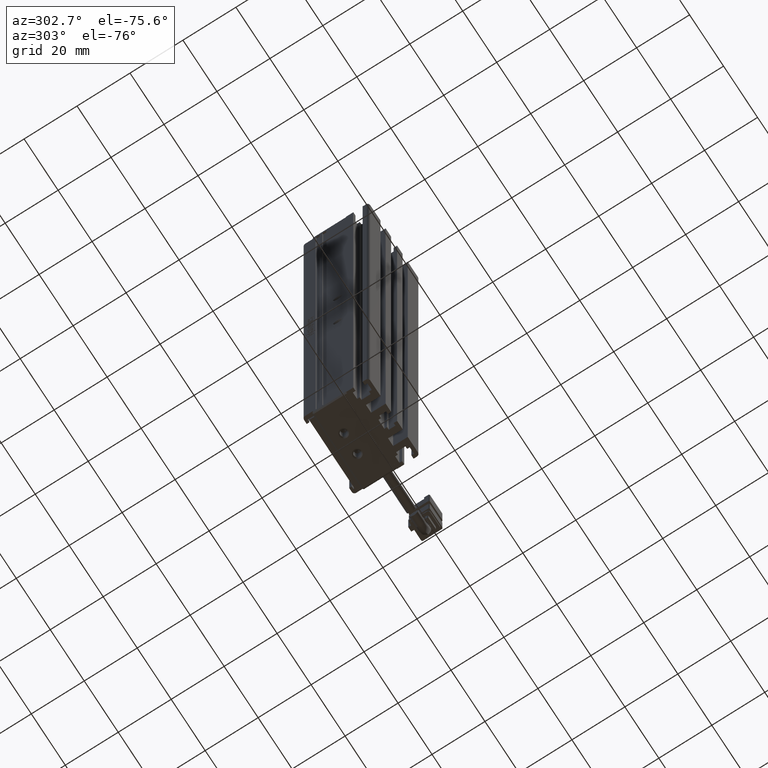
[diagram: clean part render]
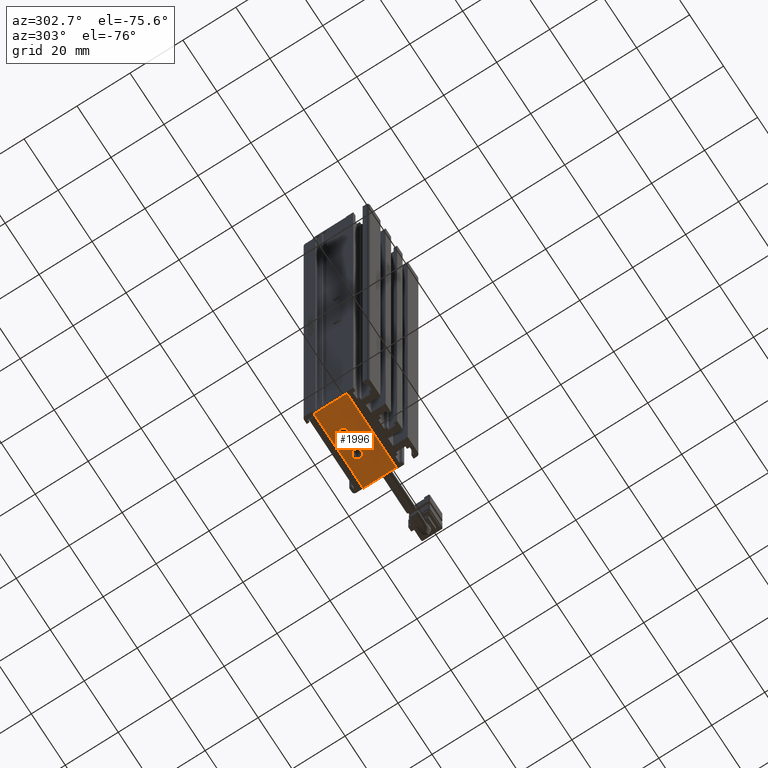
[diagram: same view with one face highlighted and labeled with its STEP entity id]
A machine part, auxiliary view. The second image highlights one B-rep face of the part: STEP entity #1996.
In plain terms, the highlighted planar face has unit normal (0, 0, -1).
Its self-contained STEP definition (entity closure, byte-faithful):
#51 = EDGE_CURVE ( 'NONE', #28193, #34334, #21846, .T. ) ;
#1038 = VERTEX_POINT ( 'NONE', #23038 ) ;
#1851 = DIRECTION ( 'NONE',  ( -1.000000000000000000, 0.0000000000000000000, 0.0000000000000000000 ) ) ;
#1996 = ADVANCED_FACE ( 'NONE', ( #16124, #45235, #5924 ), #14338, .T. ) ;
#2005 = DIRECTION ( 'NONE',  ( -0.0000000000000000000, -0.0000000000000000000, 1.000000000000000000 ) ) ;
#2336 = CARTESIAN_POINT ( 'NONE',  ( 36.92537974683541800, 27.19594479660386500, -226.9999999999809000 ) ) ;
#2343 = EDGE_CURVE ( 'NONE', #24274, #1038, #38625, .T. ) ;
#2516 = EDGE_LOOP ( 'NONE', ( #8730, #24252 ) ) ;
#2826 = VECTOR ( 'NONE', #4586, 1000.000000000000000 ) ;
#2914 = ORIENTED_EDGE ( 'NONE', *, *, #27933, .T. ) ;
#4586 = DIRECTION ( 'NONE',  ( 1.000000000000000000, -0.0000000000000000000, 0.0000000000000000000 ) ) ;
#4651 = CARTESIAN_POINT ( 'NONE',  ( 40.92537974683542500, 31.69594479660386500, -227.0000000000000000 ) ) ;
#5924 = FACE_BOUND ( 'NONE', #2516, .T. ) ;
#7203 = ORIENTED_EDGE ( 'NONE', *, *, #7353, .T. ) ;
#7353 = EDGE_CURVE ( 'NONE', #34334, #28193, #16369, .T. ) ;
#7422 = LINE ( 'NONE', #32911, #18813 ) ;
#8666 = AXIS2_PLACEMENT_3D ( 'NONE', #16745, #16965, #17220 ) ;
#8730 = ORIENTED_EDGE ( 'NONE', *, *, #2343, .T. ) ;
#9499 = CARTESIAN_POINT ( 'NONE',  ( 35.22537974680740500, 27.19594479660386500, -226.9999999999809000 ) ) ;
#10084 = DIRECTION ( 'NONE',  ( 0.0000000000000000000, 1.000000000000000000, 0.0000000000000000000 ) ) ;
#10431 = EDGE_CURVE ( 'NONE', #44353, #15553, #32094, .T. ) ;
#10494 = DIRECTION ( 'NONE',  ( -0.0000000000000000000, -0.0000000000000000000, 1.000000000000000000 ) ) ;
#10894 = DIRECTION ( 'NONE',  ( -0.0000000000000000000, -1.000000000000000000, -0.0000000000000000000 ) ) ;
#11135 = VECTOR ( 'NONE', #38174, 1000.000000000000000 ) ;
#11657 = CARTESIAN_POINT ( 'NONE',  ( 43.22537974682651200, 27.19594479660386500, -227.0000000000000000 ) ) ;
#11733 = LINE ( 'NONE', #29916, #21914 ) ;
#14338 = PLANE ( 'NONE',  #8666 ) ;
#15553 = VERTEX_POINT ( 'NONE', #17431 ) ;
#15591 = EDGE_CURVE ( 'NONE', #29122, #44353, #7422, .T. ) ;
#16124 = FACE_OUTER_BOUND ( 'NONE', #17463, .T. ) ;
#16369 = CIRCLE ( 'NONE', #34692, 1.700000000028012400 ) ;
#16745 = CARTESIAN_POINT ( 'NONE',  ( 40.92537974683542500, 25.69594479660386500, -227.0000000000000000 ) ) ;
#16965 = DIRECTION ( 'NONE',  ( 0.0000000000000000000, 0.0000000000000000000, -1.000000000000000000 ) ) ;
#17001 = AXIS2_PLACEMENT_3D ( 'NONE', #24763, #24885, #24918 ) ;
#17220 = DIRECTION ( 'NONE',  ( -1.000000000000000000, 0.0000000000000000000, -0.0000000000000000000 ) ) ;
#17431 = CARTESIAN_POINT ( 'NONE',  ( 55.42537974683542500, 31.69594479660386800, -227.0000000000000000 ) ) ;
#17463 = EDGE_LOOP ( 'NONE', ( #21078, #2914, #31780, #49312 ) ) ;
#17468 = CIRCLE ( 'NONE', #32133, 1.700000000008916600 ) ;
#18813 = VECTOR ( 'NONE', #10084, 1000.000000000000000 ) ;
#21078 = ORIENTED_EDGE ( 'NONE', *, *, #34618, .T. ) ;
#21846 = CIRCLE ( 'NONE', #45825, 1.700000000028012400 ) ;
#21914 = VECTOR ( 'NONE', #10894, 1000.000000000000000 ) ;
#23038 = CARTESIAN_POINT ( 'NONE',  ( 46.62537974684434500, 27.19594479660386500, -227.0000000000000000 ) ) ;
#24252 = ORIENTED_EDGE ( 'NONE', *, *, #32316, .T. ) ;
#24274 = VERTEX_POINT ( 'NONE', #11657 ) ;
#24763 = CARTESIAN_POINT ( 'NONE',  ( 44.92537974683542500, 27.19594479660386500, -227.0000000000000000 ) ) ;
#24885 = DIRECTION ( 'NONE',  ( -0.0000000000000000000, -0.0000000000000000000, 1.000000000000000000 ) ) ;
#24918 = DIRECTION ( 'NONE',  ( -1.000000000000000000, 0.0000000000000000000, 0.0000000000000000000 ) ) ;
#25442 = DIRECTION ( 'NONE',  ( -1.000000000000000000, 0.0000000000000000000, 0.0000000000000000000 ) ) ;
#25594 = DIRECTION ( 'NONE',  ( -0.0000000000000000000, -0.0000000000000000000, 1.000000000000000000 ) ) ;
#25773 = CARTESIAN_POINT ( 'NONE',  ( 36.92537974683541800, 27.19594479660386500, -226.9999999999809000 ) ) ;
#26744 = CARTESIAN_POINT ( 'NONE',  ( 40.92537974683542500, 19.19594479660386500, -227.0000000000000000 ) ) ;
#27933 = EDGE_CURVE ( 'NONE', #45157, #29122, #32583, .T. ) ;
#28193 = VERTEX_POINT ( 'NONE', #9499 ) ;
#29122 = VERTEX_POINT ( 'NONE', #30280 ) ;
#29916 = CARTESIAN_POINT ( 'NONE',  ( 55.42537974683541800, 25.69594479660386500, -227.0000000000000000 ) ) ;
#30280 = CARTESIAN_POINT ( 'NONE',  ( 26.42537974683542500, 19.19594479660386500, -227.0000000000000000 ) ) ;
#31780 = ORIENTED_EDGE ( 'NONE', *, *, #15591, .T. ) ;
#32094 = LINE ( 'NONE', #4651, #2826 ) ;
#32133 = AXIS2_PLACEMENT_3D ( 'NONE', #33297, #10494, #37136 ) ;
#32316 = EDGE_CURVE ( 'NONE', #1038, #24274, #17468, .T. ) ;
#32583 = LINE ( 'NONE', #26744, #11135 ) ;
#32911 = CARTESIAN_POINT ( 'NONE',  ( 26.42537974683542500, 25.69594479660386500, -227.0000000000000000 ) ) ;
#33297 = CARTESIAN_POINT ( 'NONE',  ( 44.92537974683542500, 27.19594479660386500, -227.0000000000000000 ) ) ;
#34334 = VERTEX_POINT ( 'NONE', #43209 ) ;
#34618 = EDGE_CURVE ( 'NONE', #15553, #45157, #11733, .T. ) ;
#34692 = AXIS2_PLACEMENT_3D ( 'NONE', #2336, #2005, #1851 ) ;
#35802 = CARTESIAN_POINT ( 'NONE',  ( 55.42537974683541100, 19.19594479660386500, -227.0000000000000000 ) ) ;
#36280 = ORIENTED_EDGE ( 'NONE', *, *, #51, .T. ) ;
#37136 = DIRECTION ( 'NONE',  ( -1.000000000000000000, 0.0000000000000000000, 0.0000000000000000000 ) ) ;
#38174 = DIRECTION ( 'NONE',  ( -1.000000000000000000, 0.0000000000000000000, -0.0000000000000000000 ) ) ;
#38197 = CARTESIAN_POINT ( 'NONE',  ( 26.42537974683542500, 31.69594479660386800, -227.0000000000000000 ) ) ;
#38275 = EDGE_LOOP ( 'NONE', ( #36280, #7203 ) ) ;
#38625 = CIRCLE ( 'NONE', #17001, 1.700000000008916600 ) ;
#43209 = CARTESIAN_POINT ( 'NONE',  ( 38.62537974686343000, 27.19594479660386500, -226.9999999999809000 ) ) ;
#44353 = VERTEX_POINT ( 'NONE', #38197 ) ;
#45157 = VERTEX_POINT ( 'NONE', #35802 ) ;
#45235 = FACE_BOUND ( 'NONE', #38275, .T. ) ;
#45825 = AXIS2_PLACEMENT_3D ( 'NONE', #25773, #25594, #25442 ) ;
#49312 = ORIENTED_EDGE ( 'NONE', *, *, #10431, .T. ) ;